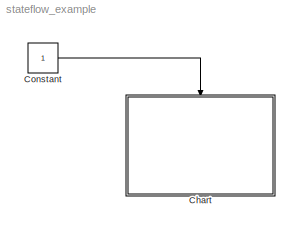
MODEL stateflow_example
KIND model
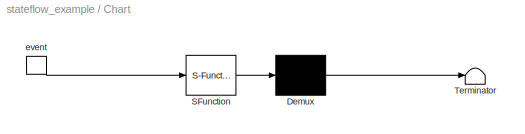
BLOCK [SubSystem] Chart
  ErrorFcn = Stateflow.Translate.translate
  FunctionWithSeparateData = off
  MaskHideContents = off
  MinAlgLoopOccurrences = off
  Opaque = off
  PermitHierarchicalResolution = ExplicitOnly
  Ports = [0, 0, 0, 1]
  PropExecContextOutsideSubsystem = off
  RTWSystemCode = Auto
  RequestExecContextInheritance = off
  SFBlockType = Chart
  SID = 1
  TreatAsAtomicUnit = on
BLOCK [Demux] Chart/ Demux 
  Outputs = 1
  Ports = [1, 1]
  SID = 1::38
BLOCK [S-Function] Chart/ SFunction 
  EnableBusSupport = on
  FunctionName = sf_sfun
  PortCounts = [1 1]
  Ports = [1, 1]
  SID = 1::37
  Tag = Stateflow S-Function stateflow_example 1
BLOCK [Terminator] Chart/ Terminator 
  SID = 1::40
BLOCK [TriggerPort] Chart/event
  Ports = [0, 1]
  SID = 1::41
  ShowOutputPort = on
  StatesWhenEnabling = held
BLOCK [Constant] Constant
  SID = 2
LINE Chart/ Demux :1 -> Chart/ Terminator :1
LINE Chart/ SFunction :1 -> Chart/ Demux :1
LINE Chart/event:1 -> Chart/ SFunction :1
LINE Constant:1 -> Chart:trigger
CHART Chart states=2 transitions=2
  STATE_LABEL 'Initial'
  STATE_LABEL 'Final'
